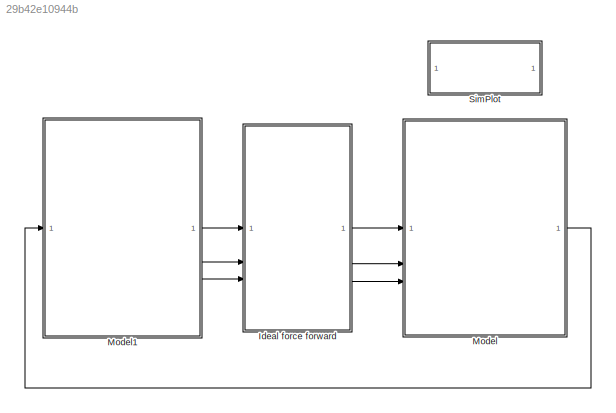
MODEL slx_29b42e10944b
KIND model
CONFIG StartFcn = run('control_init.m');
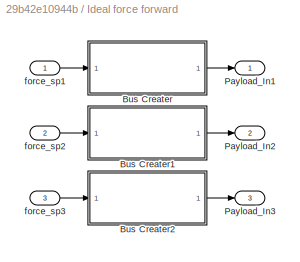
BLOCK [SubSystem] Ideal force forward
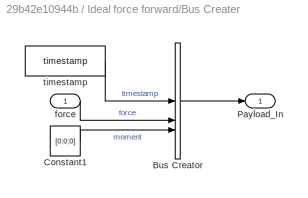
BLOCK [SubSystem] Ideal force forward/Bus Creater
BLOCK [BusCreator] Ideal force forward/Bus Creater/Bus Creator
  DisplayOption = bar
  InheritFromInputs = on
  Inputs = timestamp,force,moment
  OutDataTypeStr = Bus: Payload_In_Bus
BLOCK [Constant] Ideal force forward/Bus Creater/Constant1
  OutDataTypeStr = Inherit: Inherit via back propagation
  Value = [0;0;0]
BLOCK [Outport] Ideal force forward/Bus Creater/Payload_In
  OutDataTypeStr = Bus: Payload_In_Bus
BLOCK [Inport] Ideal force forward/Bus Creater/force
BLOCK [Reference] Ideal force forward/Bus Creater/timestamp  REF=mqlib/timestamp  (lib defined in slx_e55b6aeabbfa)
  SourceBlock = mqlib/timestamp
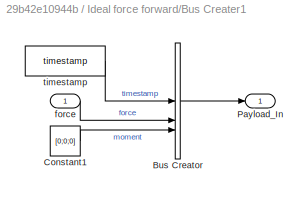
BLOCK [SubSystem] Ideal force forward/Bus Creater1
BLOCK [BusCreator] Ideal force forward/Bus Creater1/Bus Creator
  DisplayOption = bar
  InheritFromInputs = on
  Inputs = timestamp,force,moment
  OutDataTypeStr = Bus: Payload_In_Bus
BLOCK [Constant] Ideal force forward/Bus Creater1/Constant1
  OutDataTypeStr = Inherit: Inherit via back propagation
  Value = [0;0;0]
BLOCK [Outport] Ideal force forward/Bus Creater1/Payload_In
  OutDataTypeStr = Bus: Payload_In_Bus
BLOCK [Inport] Ideal force forward/Bus Creater1/force
BLOCK [Reference] Ideal force forward/Bus Creater1/timestamp  REF=mqlib/timestamp  (lib defined in slx_e55b6aeabbfa)
  SourceBlock = mqlib/timestamp
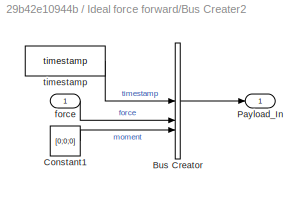
BLOCK [SubSystem] Ideal force forward/Bus Creater2
BLOCK [BusCreator] Ideal force forward/Bus Creater2/Bus Creator
  DisplayOption = bar
  InheritFromInputs = on
  Inputs = timestamp,force,moment
  OutDataTypeStr = Bus: Payload_In_Bus
BLOCK [Constant] Ideal force forward/Bus Creater2/Constant1
  OutDataTypeStr = Inherit: Inherit via back propagation
  Value = [0;0;0]
BLOCK [Outport] Ideal force forward/Bus Creater2/Payload_In
  OutDataTypeStr = Bus: Payload_In_Bus
BLOCK [Inport] Ideal force forward/Bus Creater2/force
BLOCK [Reference] Ideal force forward/Bus Creater2/timestamp  REF=mqlib/timestamp  (lib defined in slx_e55b6aeabbfa)
  SourceBlock = mqlib/timestamp
BLOCK [Outport] Ideal force forward/Payload_In1
  OutDataTypeStr = Bus: Payload_In_Bus
BLOCK [Outport] Ideal force forward/Payload_In2
  OutDataTypeStr = Bus: Payload_In_Bus
  Port = 2
BLOCK [Outport] Ideal force forward/Payload_In3
  OutDataTypeStr = Bus: Payload_In_Bus
  Port = 3
BLOCK [Inport] Ideal force forward/force_sp1
BLOCK [Inport] Ideal force forward/force_sp2
  Port = 2
BLOCK [Inport] Ideal force forward/force_sp3
  Port = 3
BLOCK [ModelReference] Model
  ModelNameDialog = payload_6dof
  ModelReferenceVersion = 1.102
BLOCK [ModelReference] Model1
  ModelNameDialog = control_6dof
  ModelReferenceVersion = 1.419
BLOCK [SubSystem] SimPlot
  OpenFcn = run('simplot.m');
LINE Ideal force forward/Bus Creater/Bus Creator:1 -> Ideal force forward/Bus Creater/Payload_In:1
LINE Ideal force forward/Bus Creater/Constant1:1 -> Ideal force forward/Bus Creater/Bus Creator:3
LINE Ideal force forward/Bus Creater/force:1 -> Ideal force forward/Bus Creater/Bus Creator:2
LINE Ideal force forward/Bus Creater/timestamp:1 -> Ideal force forward/Bus Creater/Bus Creator:1
LINE Ideal force forward/Bus Creater1/Bus Creator:1 -> Ideal force forward/Bus Creater1/Payload_In:1
LINE Ideal force forward/Bus Creater1/Constant1:1 -> Ideal force forward/Bus Creater1/Bus Creator:3
LINE Ideal force forward/Bus Creater1/force:1 -> Ideal force forward/Bus Creater1/Bus Creator:2
LINE Ideal force forward/Bus Creater1/timestamp:1 -> Ideal force forward/Bus Creater1/Bus Creator:1
LINE Ideal force forward/Bus Creater1:1 -> Ideal force forward/Payload_In2:1
LINE Ideal force forward/Bus Creater2/Bus Creator:1 -> Ideal force forward/Bus Creater2/Payload_In:1
LINE Ideal force forward/Bus Creater2/Constant1:1 -> Ideal force forward/Bus Creater2/Bus Creator:3
LINE Ideal force forward/Bus Creater2/force:1 -> Ideal force forward/Bus Creater2/Bus Creator:2
LINE Ideal force forward/Bus Creater2/timestamp:1 -> Ideal force forward/Bus Creater2/Bus Creator:1
LINE Ideal force forward/Bus Creater2:1 -> Ideal force forward/Payload_In3:1
LINE Ideal force forward/Bus Creater:1 -> Ideal force forward/Payload_In1:1
LINE Ideal force forward/force_sp1:1 -> Ideal force forward/Bus Creater:1
LINE Ideal force forward/force_sp2:1 -> Ideal force forward/Bus Creater1:1
LINE Ideal force forward/force_sp3:1 -> Ideal force forward/Bus Creater2:1
LINE Ideal force forward:1 -> Model:1
LINE Ideal force forward:2 -> Model:2
LINE Ideal force forward:3 -> Model:3
LINE Model1:1 -> Ideal force forward:1
LINE Model1:2 -> Ideal force forward:2
LINE Model1:3 -> Ideal force forward:3
LINE Model:1 -> Model1:1
